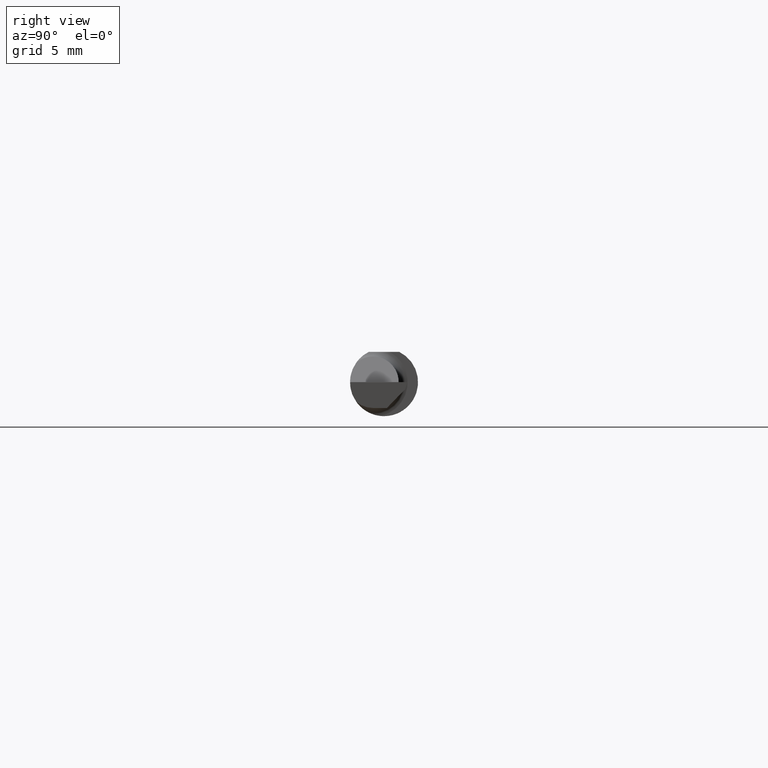
[diagram: clean part render]
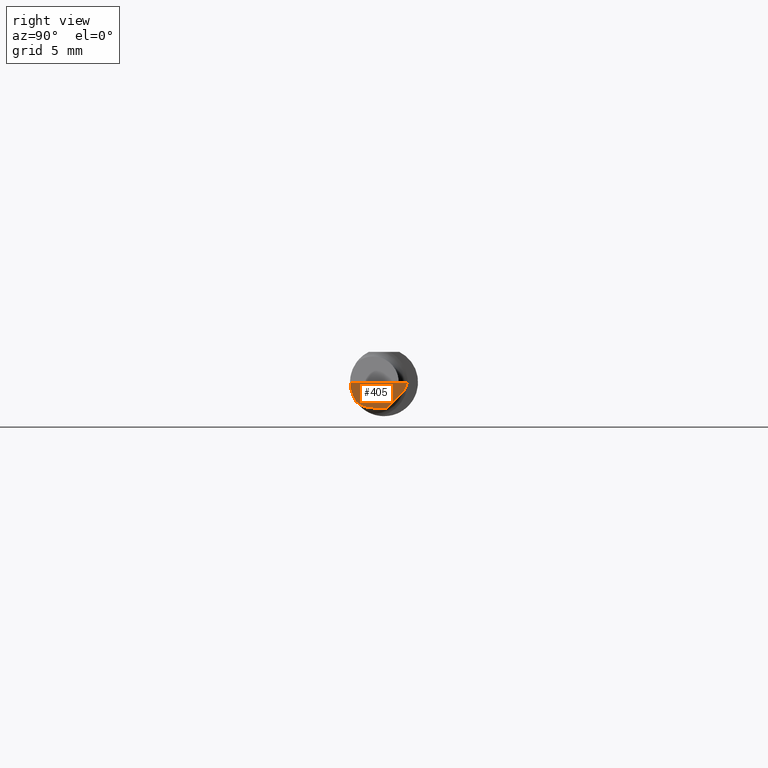
[diagram: same view with one face highlighted and labeled with its STEP entity id]
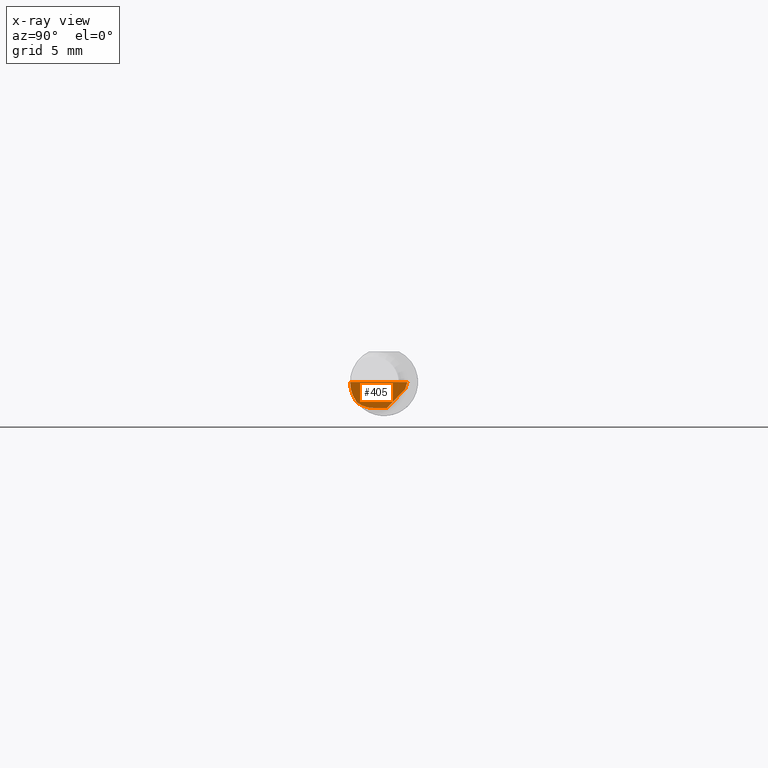
[diagram: x-ray of the same camera — body ghosted, the highlighted face saturated]
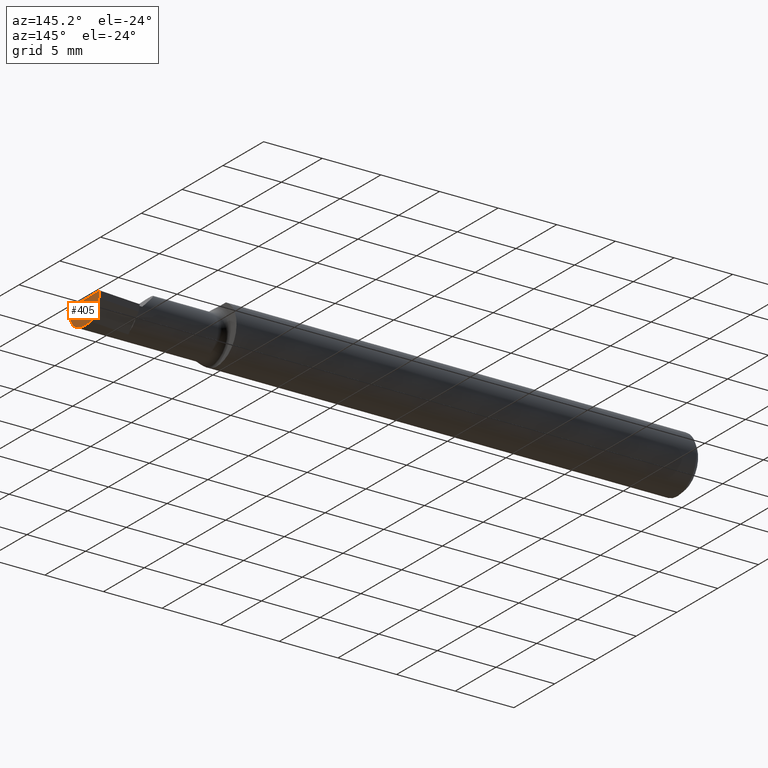
[diagram: same view with one face highlighted and labeled with its STEP entity id]
A machine part, right view. The second image highlights one B-rep face of the part: STEP entity #405.
The next image is the same camera in x-ray: the body ghosted, the highlighted face saturated — about 0% of this face is hidden behind the body in this view.
A second angle (auxiliary view) of the same face is appended — the face is thin or edge-on in the first view.
In plain terms, the highlighted planar face has unit normal (0.9922, -0.026, -0.1219).
Its self-contained STEP definition (entity closure, byte-faithful):
#15 = ORIENTED_EDGE ( 'NONE', *, *, #455, .T. ) ;
#19 = CARTESIAN_POINT ( 'NONE',  ( 1.991772787678609324, -0.2497845628634190740, -6.377686106282058433E-17 ) ) ;
#22 = EDGE_CURVE ( 'NONE', #503, #380, #521, .T. ) ;
#32 = EDGE_CURVE ( 'NONE', #598, #380, #322, .T. ) ;
#40 = CARTESIAN_POINT ( 'NONE',  ( 1.988791645263412011, -0.03060000000000022424, -0.07100000000000021572 ) ) ;
#41 = DIRECTION ( 'NONE',  ( 0.02617694830786939167, 0.9996573249755573709, -4.246274422243602914E-17 ) ) ;
#42 = CARTESIAN_POINT ( 'NONE',  ( 1.995862624392068074, -0.09360000000000009979, -6.605666309584466665E-17 ) ) ;
#59 = CARTESIAN_POINT ( 'NONE',  ( 2.000000000000004441, 0.06440000000001341873, 4.273634705088531894E-14 ) ) ;
#64 = VECTOR ( 'NONE', #431, 39.37007874015748143 ) ;
#72 = CARTESIAN_POINT ( 'NONE',  ( 1.988641161029047311, -0.06318680184005830147, -0.06527786071030769466 ) ) ;
#91 = CARTESIAN_POINT ( 'NONE',  ( 1.989797099917948842, 0.007796764149783521822, -0.07100000000000021572 ) ) ;
#95 = DIRECTION ( 'NONE',  ( 0.1240019227989323375, 0.3022330132596648400, 0.9451342385281314984 ) ) ;
#139 = CARTESIAN_POINT ( 'NONE',  ( 1.989625015145392917, -0.07608366013071821143, -0.05451822320209420702 ) ) ;
#166 = ORIENTED_EDGE ( 'NONE', *, *, #32, .T. ) ;
#174 = ORIENTED_EDGE ( 'NONE', *, *, #180, .T. ) ;
#180 = EDGE_CURVE ( 'NONE', #563, #212, #486, .T. ) ;
#185 = CARTESIAN_POINT ( 'NONE',  ( 1.988799325593724632, -0.03030670001847553252, -0.07100000000000021572 ) ) ;
#196 = CARTESIAN_POINT ( 'NONE',  ( 1.991292915001084296, -0.08756847698997995144, -0.03849042825095487508 ) ) ;
#208 = ORIENTED_EDGE ( 'NONE', *, *, #591, .T. ) ;
#210 = DIRECTION ( 'NONE',  ( -0.02617694830786939167, -0.9996573249755573709, 1.459184416195897376E-17 ) ) ;
#212 = VERTEX_POINT ( 'NONE', #59 ) ;
#218 = AXIS2_PLACEMENT_3D ( 'NONE', #473, #273, #470 ) ;
#237 = EDGE_CURVE ( 'NONE', #212, #598, #250, .T. ) ;
#241 = CARTESIAN_POINT ( 'NONE',  ( 1.995862624392068074, -0.09360000000000009979, -6.605666309584466665E-17 ) ) ;
#248 = ORIENTED_EDGE ( 'NONE', *, *, #22, .F. ) ;
#250 = LINE ( 'NONE', #19, #362 ) ;
#270 = CARTESIAN_POINT ( 'NONE',  ( 1.989625015145392917, -0.07608366013071821143, -0.05451822320209420702 ) ) ;
#273 = DIRECTION ( 'NONE',  ( 0.9922060308645480609, -0.02598182930468958748, -0.1218693434051461438 ) ) ;
#281 = CARTESIAN_POINT ( 'NONE',  ( 1.997375993425186458, 0.05800444260848394012, -0.01999999999999999001 ) ) ;
#319 = VECTOR ( 'NONE', #41, 39.37007874015748143 ) ;
#322 =( BOUNDED_CURVE ( )  B_SPLINE_CURVE ( 3, ( #42, #436, #196, #139 ),
 .UNSPECIFIED., .F., .T. ) 
 B_SPLINE_CURVE_WITH_KNOTS ( ( 4, 4 ),
 ( 4.922438424664829171, 5.544189768309971456 ),
 .UNSPECIFIED. ) 
 CURVE ( )  GEOMETRIC_REPRESENTATION_ITEM ( )  RATIONAL_B_SPLINE_CURVE ( ( 1.000000000000000000, 0.9680440490283178656, 0.9680440490283178656, 1.000000000000000000 ) ) 
 REPRESENTATION_ITEM ( '' )  );
#326 = FACE_OUTER_BOUND ( 'NONE', #568, .T. ) ;
#335 = LINE ( 'NONE', #185, #319 ) ;
#340 = CARTESIAN_POINT ( 'NONE',  ( 1.989254605881537685, 0.03820997996013973663, -0.08190066459133928112 ) ) ;
#362 = VECTOR ( 'NONE', #210, 39.37007874015748143 ) ;
#380 = VERTEX_POINT ( 'NONE', #270 ) ;
#381 = CARTESIAN_POINT ( 'NONE',  ( 1.987153287650113009, -0.009717623157798458214, -0.08879077981909574979 ) ) ;
#405 = ADVANCED_FACE ( 'NONE', ( #326 ), #467, .T. ) ;
#431 = DIRECTION ( 'NONE',  ( 0.1053106618241779063, 0.6976485211320171409, 0.7086580314005218595 ) ) ;
#436 = CARTESIAN_POINT ( 'NONE',  ( 1.993440754331651910, -0.09359999999999998876, -0.01971778966533910271 ) ) ;
#455 = EDGE_CURVE ( 'NONE', #503, #514, #335, .T. ) ;
#464 = VECTOR ( 'NONE', #95, 39.37007874015748854 ) ;
#467 = PLANE ( 'NONE',  #218 ) ;
#470 = DIRECTION ( 'NONE',  ( -0.1219104985252815604, 0.000000000000000000, -0.9925410975618679243 ) ) ;
#473 = CARTESIAN_POINT ( 'NONE',  ( 2.075578470192265268, -0.1475581462076027695, 0.6605145482336969298 ) ) ;
#485 = LINE ( 'NONE', #381, #64 ) ;
#486 = LINE ( 'NONE', #340, #464 ) ;
#503 = VERTEX_POINT ( 'NONE', #573 ) ;
#512 = CARTESIAN_POINT ( 'NONE',  ( 1.988351831874612285, -0.04739579569646895640, -0.07100000000000018796 ) ) ;
#514 = VERTEX_POINT ( 'NONE', #91 ) ;
#521 =( BOUNDED_CURVE ( )  B_SPLINE_CURVE ( 3, ( #40, #512, #72, #540 ),
 .UNSPECIFIED., .F., .T. ) 
 B_SPLINE_CURVE_WITH_KNOTS ( ( 4, 4 ),
 ( 6.073135862899447623, 6.768434696801359785 ),
 .UNSPECIFIED. ) 
 CURVE ( )  GEOMETRIC_REPRESENTATION_ITEM ( )  RATIONAL_B_SPLINE_CURVE ( ( 1.000000000000000000, 0.9601174178332941844, 0.9601174178332941844, 1.000000000000000000 ) ) 
 REPRESENTATION_ITEM ( '' )  );
#540 = CARTESIAN_POINT ( 'NONE',  ( 1.989625015145392917, -0.07608366013071821143, -0.05451822320209420702 ) ) ;
#550 = ORIENTED_EDGE ( 'NONE', *, *, #237, .T. ) ;
#563 = VERTEX_POINT ( 'NONE', #281 ) ;
#568 = EDGE_LOOP ( 'NONE', ( #166, #248, #15, #208, #174, #550 ) ) ;
#573 = CARTESIAN_POINT ( 'NONE',  ( 1.988791645263412011, -0.03060000000000022424, -0.07100000000000021572 ) ) ;
#591 = EDGE_CURVE ( 'NONE', #514, #563, #485, .T. ) ;
#598 = VERTEX_POINT ( 'NONE', #241 ) ;